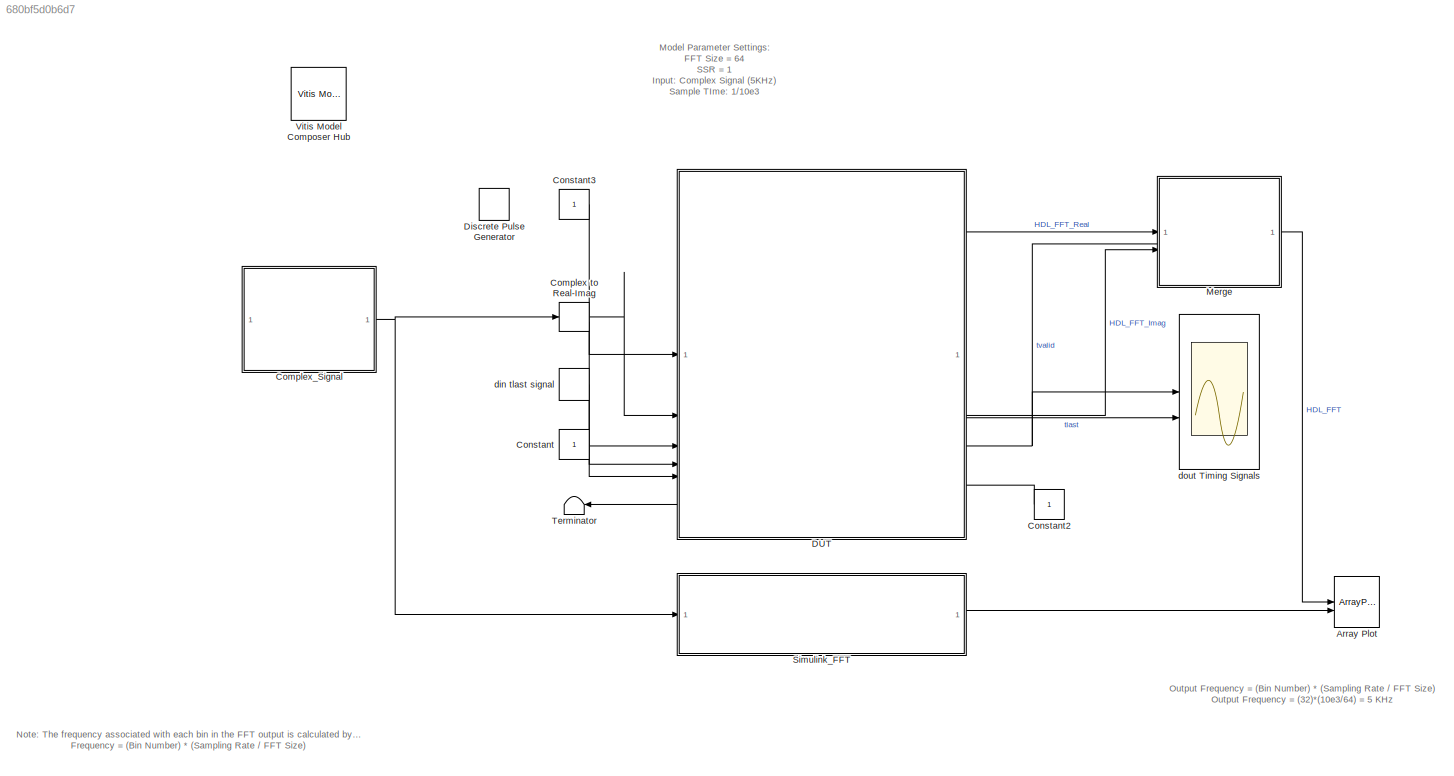
MODEL slx_680bf5d0b6d7
KIND model
CONFIG AbsTol = auto
CONFIG EnableMultiTasking = on
CONFIG FixedStep = auto
CONFIG InitFcn = FFT_Size = 64;\n
CONFIG MaxStep = auto
CONFIG MinStep = auto
CONFIG RelTol = 1e-3
CONFIG SampleTimeConstraint = Unconstrained
CONFIG SolverName = ode45
CONFIG StartTime = 0.0
CONFIG StopTime = 1024/10e3
BLOCK [ArrayPlot] Array Plot
  GraphicalSettings = {"Style":{"BackgroundColor":[0.12941176470588237,0.12941176470588237,0.12941176470588237],"AxesColor":[0.070588235294117646,0.070588235294117646,0.070588235294117646],"LabelsColor":[0.85098039215686272,0.85098039215686272,0.85098039215686272],"PreserveColors":false,"Visible":[false,true],"LineStyle":["-","-"],"LineWidth":[1.5,1.5],"BarWidth":[0.9,0.9],"LineColor":[[1,0.90980392156862744,0.39215686...<+723ch>
  NumInputPorts = 2
  ScopeFrameLocation = window
  ShowLegend = on
  Visible = on
  WasSavedAsWebScope = on
  WindowPosition = [6.000000,33.000000,1920.000000,1149.000000,]
  YLimits = [-0.0625 0.5625]
BLOCK [ComplexToRealImag] Complex to Real-Imag
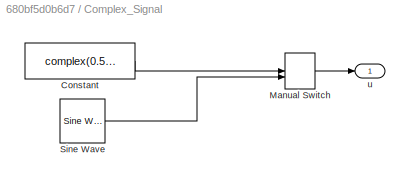
BLOCK [SubSystem] Complex_Signal
BLOCK [Constant] Complex_Signal/Constant
  SampleTime = 1/10e3
  Value = complex(0.5,0)
BLOCK [ManualSwitch] Complex_Signal/Manual Switch
  CurrentSetting = 0
BLOCK [Reference] Complex_Signal/Sine Wave  REF=dspsrcs4/Sine Wave
  LibrarySourceBlock = dsphdlsupportsrcs/Sine Wave
  SourceBlock = dspsrcs4/Sine Wave
  SourceType = Sine Wave
BLOCK [Outport] Complex_Signal/u
BLOCK [Constant] Constant
BLOCK [Constant] Constant2
BLOCK [Constant] Constant3
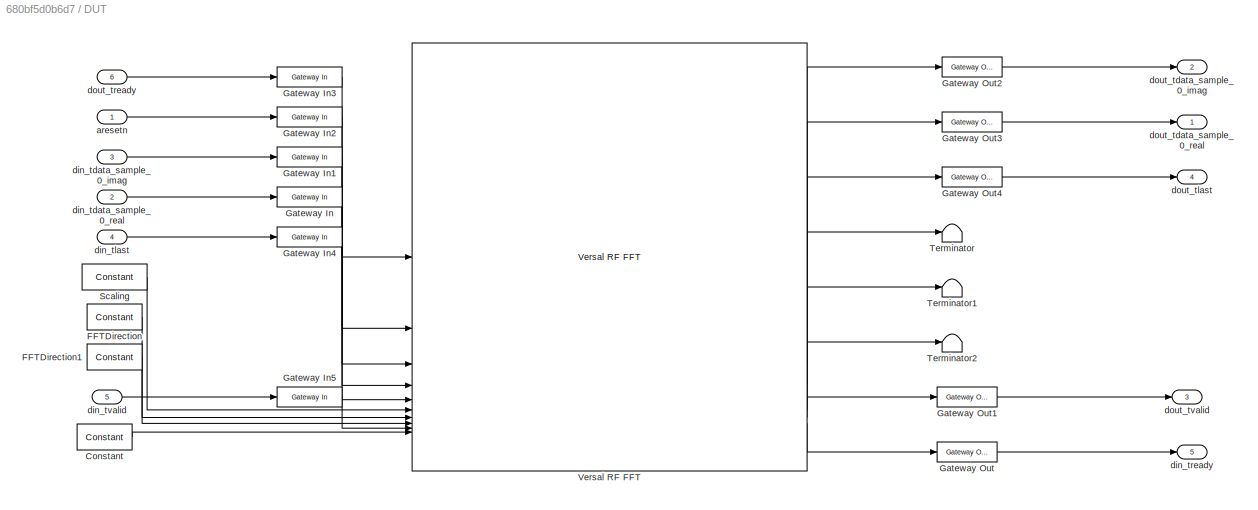
BLOCK [SubSystem] DUT
  PortSchema = {"entries":[{"content":{"sides":[{"content":{"connectorIds":["In1","In2","In3","In4","In5","Out5"]},"type":"ConnectorPlacement.EquallySpacedRectSide","uuid":"3c6f3837-184a-448e-85f8-bb0a441efaec"},{"content":{"connectorIds":["Out1","Out2","Out3","Out4","In6"],"side":"RIGHT"},"type":"ConnectorPlacement.EquallySpacedRectSide","uuid":"46fc4b89-da5b-4d62-9143-13f654c886da"},{"content":{"side":"TOP"},"...<+280ch>
BLOCK [Reference] DUT/Constant  REF=hdlBasic/Constant
  SourceBlock = hdlBasic/Constant
  SourceType = Constant Block Block
BLOCK [Reference] DUT/FFTDirection  REF=hdlBasic/Constant
  SourceBlock = hdlBasic/Constant
  SourceType = Constant Block Block
BLOCK [Reference] DUT/FFTDirection1  REF=hdlBasic/Constant
  SourceBlock = hdlBasic/Constant
  SourceType = Constant Block Block
BLOCK [Reference] DUT/Gateway In  REF=hdlBasic/Gateway In
  SourceBlock = hdlBasic/Gateway In
  SourceType = Gateway In Block
BLOCK [Reference] DUT/Gateway In1  REF=hdlBasic/Gateway In
  SourceBlock = hdlBasic/Gateway In
  SourceType = Gateway In Block
BLOCK [Reference] DUT/Gateway In2  REF=hdlBasic/Gateway In
  SourceBlock = hdlBasic/Gateway In
  SourceType = Gateway In Block
BLOCK [Reference] DUT/Gateway In3  REF=hdlBasic/Gateway In
  SourceBlock = hdlBasic/Gateway In
  SourceType = Gateway In Block
BLOCK [Reference] DUT/Gateway In4  REF=hdlBasic/Gateway In
  SourceBlock = hdlBasic/Gateway In
  SourceType = Gateway In Block
BLOCK [Reference] DUT/Gateway In5  REF=hdlBasic/Gateway In
  SourceBlock = hdlBasic/Gateway In
  SourceType = Gateway In Block
BLOCK [Reference] DUT/Gateway Out  REF=hdlBasic/Gateway Out
  SourceBlock = hdlBasic/Gateway Out
  SourceType = Gateway Out Block
BLOCK [Reference] DUT/Gateway Out1  REF=hdlBasic/Gateway Out
  SourceBlock = hdlBasic/Gateway Out
  SourceType = Gateway Out Block
BLOCK [Reference] DUT/Gateway Out2  REF=hdlBasic/Gateway Out
  SourceBlock = hdlBasic/Gateway Out
  SourceType = Gateway Out Block
BLOCK [Reference] DUT/Gateway Out3  REF=hdlBasic/Gateway Out
  SourceBlock = hdlBasic/Gateway Out
  SourceType = Gateway Out Block
BLOCK [Reference] DUT/Gateway Out4  REF=hdlBasic/Gateway Out
  SourceBlock = hdlBasic/Gateway Out
  SourceType = Gateway Out Block
BLOCK [Reference] DUT/Scaling  REF=hdlBasic/Constant
  SourceBlock = hdlBasic/Constant
  SourceType = Constant Block Block
BLOCK [Terminator] DUT/Terminator
BLOCK [Terminator] DUT/Terminator1
BLOCK [Terminator] DUT/Terminator2
BLOCK [Reference] DUT/Versal RF FFT  REF=hdlDSPIP/Versal RF FFT
  SourceBlock = hdlDSPIP/Versal RF FFT
  SourceType = Versal RF FFT Block
BLOCK [Inport] DUT/aresetn
BLOCK [Inport] DUT/din_tdata_sample_0_imag
  Port = 3
BLOCK [Inport] DUT/din_tdata_sample_0_real
  Port = 2
BLOCK [Inport] DUT/din_tlast
  Port = 4
BLOCK [Outport] DUT/din_tready
  Port = 5
BLOCK [Inport] DUT/din_tvalid
  Port = 5
BLOCK [Outport] DUT/dout_tdata_sample_0_imag
  Port = 2
BLOCK [Outport] DUT/dout_tdata_sample_0_real
BLOCK [Outport] DUT/dout_tlast
  Port = 4
BLOCK [Inport] DUT/dout_tready
  Port = 6
BLOCK [Outport] DUT/dout_tvalid
  Port = 3
BLOCK [DiscretePulseGenerator] Discrete Pulse Generator
  Period = 1
  SampleTime = 1/1e4
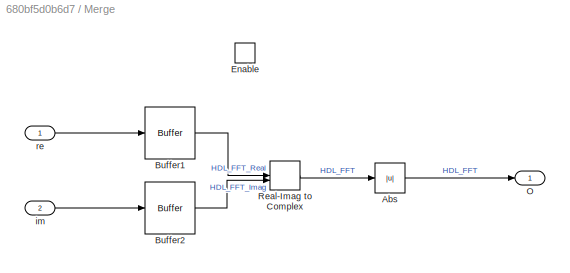
BLOCK [SubSystem] Merge
BLOCK [Abs] Merge/Abs
  SaturateOnIntegerOverflow = off
BLOCK [Buffer] Merge/Buffer1
  OutputFrames = off
BLOCK [Buffer] Merge/Buffer2
  OutputFrames = off
BLOCK [EnablePort] Merge/Enable
BLOCK [Outport] Merge/O
BLOCK [RealImagToComplex] Merge/Real-Imag to Complex
BLOCK [Inport] Merge/im
  Port = 2
BLOCK [Inport] Merge/re
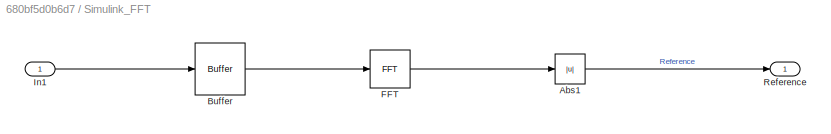
BLOCK [SubSystem] Simulink_FFT
BLOCK [Abs] Simulink_FFT/Abs1
  SaturateOnIntegerOverflow = off
BLOCK [Buffer] Simulink_FFT/Buffer
  OutputFrames = off
BLOCK [Reference] Simulink_FFT/FFT  REF=dspxfrm3/FFT
  SourceBlock = dspxfrm3/FFT
  SourceType = FFT
BLOCK [Inport] Simulink_FFT/In1
BLOCK [Outport] Simulink_FFT/Reference
BLOCK [Terminator] Terminator
BLOCK [Reference] Vitis Model Composer Hub  REF=vmcUtilities/Vitis Model Composer Hub
  SourceBlock = vmcUtilities/Vitis Model Composer Hub
  SourceType = VMC Hub
  Tag = genX
  UserDataPersistent = on
BLOCK [DiscretePulseGenerator] din tlast signal
  Period = FFT_Size
  PhaseDelay = FFT_Size-1
  SampleTime = 1/1e4
BLOCK [Scope] dout Timing Signals
  Floating = off
  NumInputPorts = 2
  ScopeSpecificationString = Simulink.scopes.TimeScopeBlockCfg('CurrentConfiguration', extmgr.ConfigurationSet(extmgr.Configuration('Core','General UI',true,'DisplayFullSourceName',false,'ShowMainToolbar',true),extmgr.Configuration('Sources','WiredSimulink',true,'DataLogging',false,'DataLoggingVariableName','ScopeData1','DataLoggingLimitDataPoints',false,'DataLoggingMaxPoints','5000','DataLoggingDecimateData',false,'DataLoggi...<+2047ch>
ANNOTATION (root): Model Parameter Settings: FFT Size = 64 SSR = 1 Input: Complex Signal (5KHz) Sample TIme: 1/10e3
ANNOTATION (root): Output Frequency = (Bin Number) * (Sampling Rate / FFT Size) Output Frequency = (32)*(10e3/64) = 5 KHz
ANNOTATION (root): Note: The frequency associated with each bin in the FFT output is calculated by dividing the bin number (starting from 0) by the FFT size and then multiplying by the sampling rate. Frequency = (Bin Number) * (Sampling Rate / FFT Size)
LINE Complex to Real-Imag:1 -> DUT:2
LINE Complex to Real-Imag:2 -> DUT:3
LINE Complex_Signal/Constant:1 -> Complex_Signal/Manual Switch:1
LINE Complex_Signal/Manual Switch:1 -> Complex_Signal/u:1
LINE Complex_Signal/Sine Wave:1 -> Complex_Signal/Manual Switch:2
NET Complex_Signal:1 -> Complex to Real-Imag:1, Simulink_FFT:1
LINE Constant2:1 -> DUT:6
LINE Constant3:1 -> DUT:1
LINE Constant:1 -> DUT:5
LINE DUT/Constant:1 -> DUT/Versal RF FFT:10
LINE DUT/FFTDirection1:1 -> DUT/Versal RF FFT:8
LINE DUT/FFTDirection:1 -> DUT/Versal RF FFT:7
LINE DUT/Gateway In1:1 -> DUT/Versal RF FFT:3
LINE DUT/Gateway In2:1 -> DUT/Versal RF FFT:2
LINE DUT/Gateway In3:1 -> DUT/Versal RF FFT:1
LINE DUT/Gateway In4:1 -> DUT/Versal RF FFT:5
LINE DUT/Gateway In5:1 -> DUT/Versal RF FFT:9
LINE DUT/Gateway In:1 -> DUT/Versal RF FFT:4
LINE DUT/Gateway Out1:1 -> DUT/dout_tvalid:1
LINE DUT/Gateway Out2:1 -> DUT/dout_tdata_sample_0_imag:1
LINE DUT/Gateway Out3:1 -> DUT/dout_tdata_sample_0_real:1
LINE DUT/Gateway Out4:1 -> DUT/dout_tlast:1
LINE DUT/Gateway Out:1 -> DUT/din_tready:1
LINE DUT/Scaling:1 -> DUT/Versal RF FFT:6
LINE DUT/Versal RF FFT:1 -> DUT/Gateway Out2:1
LINE DUT/Versal RF FFT:2 -> DUT/Gateway Out3:1
LINE DUT/Versal RF FFT:3 -> DUT/Gateway Out4:1
LINE DUT/Versal RF FFT:4 -> DUT/Terminator:1
LINE DUT/Versal RF FFT:5 -> DUT/Terminator1:1
LINE DUT/Versal RF FFT:6 -> DUT/Terminator2:1
LINE DUT/Versal RF FFT:7 -> DUT/Gateway Out1:1
LINE DUT/Versal RF FFT:8 -> DUT/Gateway Out:1
LINE DUT/aresetn:1 -> DUT/Gateway In2:1
LINE DUT/din_tdata_sample_0_imag:1 -> DUT/Gateway In1:1
LINE DUT/din_tdata_sample_0_real:1 -> DUT/Gateway In:1
LINE DUT/din_tlast:1 -> DUT/Gateway In4:1
LINE DUT/din_tvalid:1 -> DUT/Gateway In5:1
LINE DUT/dout_tready:1 -> DUT/Gateway In3:1
LINE DUT:1 -> Merge:1
LINE DUT:2 -> Merge:2
NET DUT:3 -> Merge:enable, dout Timing Signals:1
LINE DUT:4 -> dout Timing Signals:2
LINE DUT:5 -> Terminator:1
LINE Merge/Abs:1 -> Merge/O:1
LINE Merge/Buffer1:1 -> Merge/Real-Imag to Complex:1
LINE Merge/Buffer2:1 -> Merge/Real-Imag to Complex:2
LINE Merge/Real-Imag to Complex:1 -> Merge/Abs:1
LINE Merge/im:1 -> Merge/Buffer2:1
LINE Merge/re:1 -> Merge/Buffer1:1
LINE Merge:1 -> Array Plot:1
LINE Simulink_FFT/Abs1:1 -> Simulink_FFT/Reference:1
LINE Simulink_FFT/Buffer:1 -> Simulink_FFT/FFT:1
LINE Simulink_FFT/FFT:1 -> Simulink_FFT/Abs1:1
LINE Simulink_FFT/In1:1 -> Simulink_FFT/Buffer:1
LINE Simulink_FFT:1 -> Array Plot:2
LINE din tlast signal:1 -> DUT:4
note: NET lines group one-source signal fan-out (src -> all destinations, sorted); 1:1 wires keep LINE
